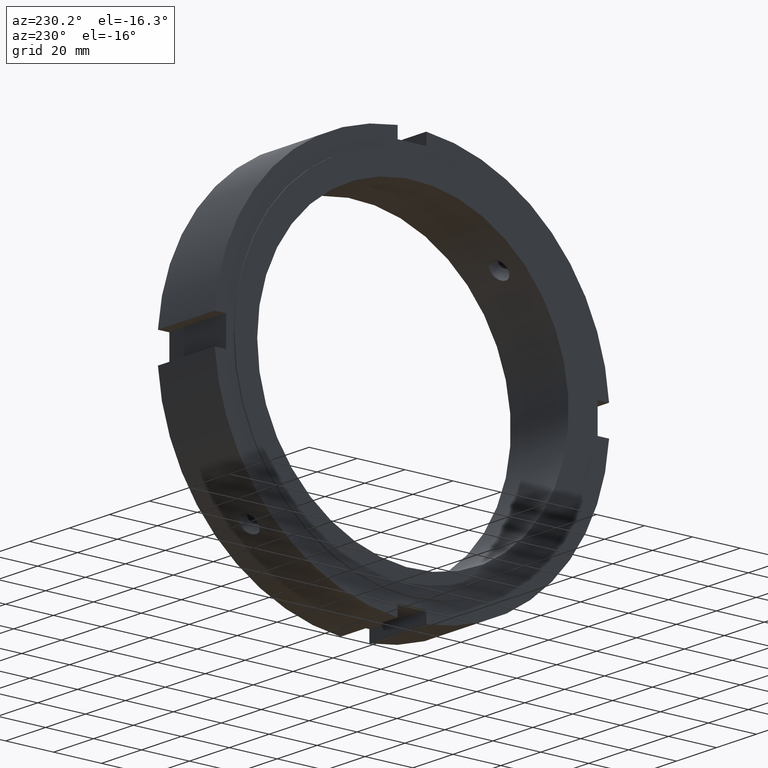
[diagram: clean part render]
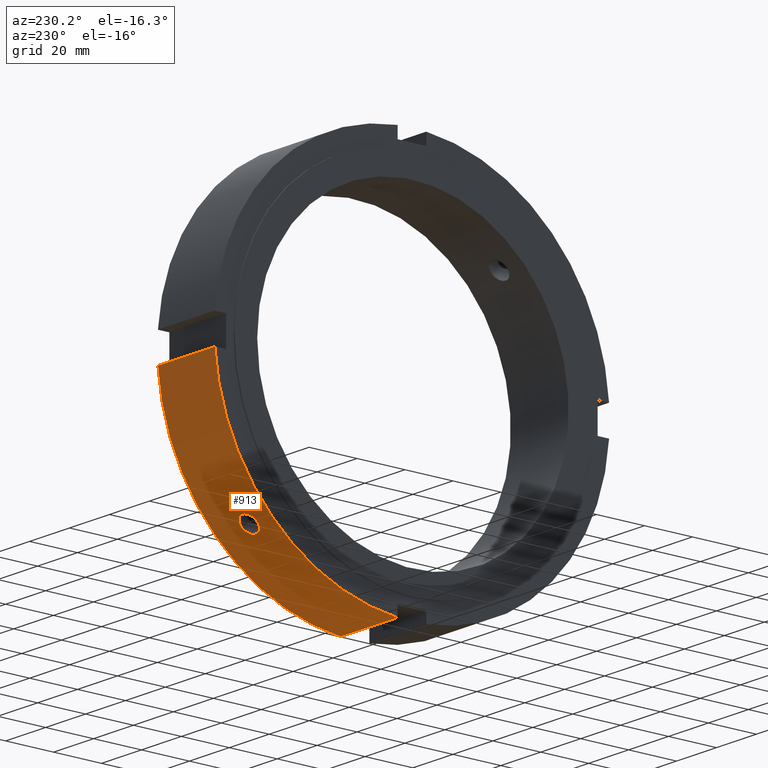
[diagram: same view with one face highlighted and labeled with its STEP entity id]
A machine part, auxiliary view. The second image highlights one B-rep face of the part: STEP entity #913.
In plain terms, the highlighted cylindrical surface (partial cylindrical patch) has radius 82.5 mm, axis along (1, 0, 0).
Its self-contained STEP definition (entity closure, byte-faithful):
#423=CARTESIAN_POINT('',(11.999999999999989,55.47633485278854,-61.062478424162244));
#424=VERTEX_POINT('',#423);
#425=CARTESIAN_POINT('',(11.999999999999986,55.47633485278854,-61.062478424162244));
#426=CARTESIAN_POINT('',(12.496052199177415,55.47633485278854,-61.062478424162244));
#427=CARTESIAN_POINT('',(13.025116846415434,55.54993872322293,-60.995860655348338));
#428=CARTESIAN_POINT('',(13.998292781156,55.84762021212854,-60.723422382487911));
#429=CARTESIAN_POINT('',(14.44241049374652,56.071513228305975,-60.517423183167281));
#430=CARTESIAN_POINT('',(15.143733015356691,56.584222005358249,-60.038312138560777));
#431=CARTESIAN_POINT('',(15.447712762344512,56.907203104077233,-59.733215904459122));
#432=CARTESIAN_POINT('',(15.850848353154539,57.607953842950067,-59.057687911437917));
#433=CARTESIAN_POINT('',(15.949999999999985,57.985547636317648,-58.687071259462684));
#434=CARTESIAN_POINT('',(15.949999999999992,58.68707125946267,-57.985547636317662));
#435=CARTESIAN_POINT('',(15.850848353154547,59.057687911437917,-57.607953842950081));
#436=CARTESIAN_POINT('',(15.447712762344532,59.733215904459129,-56.90720310407724));
#437=CARTESIAN_POINT('',(15.143733015356693,60.038312138560777,-56.584222005358257));
#438=CARTESIAN_POINT('',(14.442410493746522,60.517423183167281,-56.071513228305975));
#439=CARTESIAN_POINT('',(13.998292781156012,60.723422382487939,-55.847620212128525));
#440=CARTESIAN_POINT('',(13.025116846415443,60.995860655348366,-55.549938723222915));
#441=CARTESIAN_POINT('',(12.496052199177416,61.062478424162272,-55.476334852788519));
#442=CARTESIAN_POINT('',(11.50394780082256,61.062478424162272,-55.476334852788526));
#443=CARTESIAN_POINT('',(10.974883153584532,60.995860655348366,-55.549938723222915));
#444=CARTESIAN_POINT('',(10.001707218843965,60.723422382487939,-55.847620212128525));
#445=CARTESIAN_POINT('',(9.557589506253455,60.517423183167281,-56.071513228305975));
#446=CARTESIAN_POINT('',(8.856266984643286,60.038312138560777,-56.584222005358257));
#447=CARTESIAN_POINT('',(8.552287237655445,59.733215904459129,-56.90720310407724));
#448=CARTESIAN_POINT('',(8.149151646845427,59.057687911437917,-57.607953842950081));
#449=CARTESIAN_POINT('',(8.049999999999985,58.68707125946267,-57.985547636317662));
#450=CARTESIAN_POINT('',(8.049999999999992,57.985547636317648,-58.687071259462684));
#451=CARTESIAN_POINT('',(8.149151646845438,57.607953842950053,-59.057687911437924));
#452=CARTESIAN_POINT('',(8.552287237655463,56.907203104077226,-59.733215904459129));
#453=CARTESIAN_POINT('',(8.856266984643286,56.584222005358249,-60.038312138560777));
#454=CARTESIAN_POINT('',(9.557589506253457,56.071513228305975,-60.517423183167281));
#455=CARTESIAN_POINT('',(10.001707218843979,55.84762021212854,-60.723422382487911));
#456=CARTESIAN_POINT('',(10.974883153584543,55.54993872322293,-60.995860655348338));
#457=CARTESIAN_POINT('',(11.503947800822555,55.47633485278854,-61.062478424162244));
#458=CARTESIAN_POINT('',(11.999999999999984,55.47633485278854,-61.062478424162244));
#459=B_SPLINE_CURVE_WITH_KNOTS('',3,(#425,#426,#427,#428,#429,#430,#431,#432,#433,#434,#435,#436,#437,#438,#439,#440,#441,#442,#443,#444,#445,#446,#447,#448,#449,#450,#451,#452,#453,#454,#455,#456,#457,#458),.UNSPECIFIED.,.T.,.U.,(4,2,2,2,2,2,2,2,2,2,2,2,2,2,2,2,4),(0.0,0.148815659753228,0.297631319506456,0.446446952832976,0.595262586159496,0.744078219486017,0.892893852812537,1.041709512565766,1.190525172318995,1.339340832072223,1.488156491825452,1.636972125151972,1.785787758478493,1.934603391805013,2.083419025131533,2.232234684884761,2.381050344637989),.UNSPECIFIED.);
#460=EDGE_CURVE('',#424,#424,#459,.T.);
#557=CARTESIAN_POINT('',(0.499999999999976,5.999999999999981,-82.281528911414853));
#558=VERTEX_POINT('',#557);
#567=CARTESIAN_POINT('',(28.999999999999986,5.999999999999981,-82.281528911414853));
#568=VERTEX_POINT('',#567);
#569=CARTESIAN_POINT('',(28.999999999999986,5.999999999999981,-82.281528911414853));
#570=DIRECTION('',(-1.0,0.0,0.0));
#571=VECTOR('',#570,28.500000000000011);
#572=LINE('',#569,#571);
#573=EDGE_CURVE('',#568,#558,#572,.T.);
#878=CARTESIAN_POINT('',(14.74999999999998,0.0,0.0));
#879=DIRECTION('',(1.0,0.0,0.0));
#880=DIRECTION('',(0.0,1.0,0.0));
#881=AXIS2_PLACEMENT_3D('',#878,#879,#880);
#882=CYLINDRICAL_SURFACE('',#881,82.5);
#883=ORIENTED_EDGE('',*,*,#573,.T.);
#884=CARTESIAN_POINT('',(0.499999999999976,82.281528911414853,-5.999999999999996));
#885=VERTEX_POINT('',#884);
#886=CARTESIAN_POINT('',(0.499999999999976,0.0,0.0));
#887=DIRECTION('',(1.0,0.0,0.0));
#888=DIRECTION('',(0.0,1.0,0.0));
#889=AXIS2_PLACEMENT_3D('',#886,#887,#888);
#890=CIRCLE('',#889,82.5);
#891=EDGE_CURVE('',#558,#885,#890,.T.);
#892=ORIENTED_EDGE('',*,*,#891,.T.);
#893=CARTESIAN_POINT('',(28.999999999999986,82.281528911414853,-5.999999999999996));
#894=VERTEX_POINT('',#893);
#895=CARTESIAN_POINT('',(0.499999999999975,82.281528911414853,-5.999999999999996));
#896=DIRECTION('',(1.0,0.0,0.0));
#897=VECTOR('',#896,28.500000000000011);
#898=LINE('',#895,#897);
#899=EDGE_CURVE('',#885,#894,#898,.T.);
#900=ORIENTED_EDGE('',*,*,#899,.T.);
#901=CARTESIAN_POINT('',(28.999999999999986,0.0,0.0));
#902=DIRECTION('',(1.0,0.0,0.0));
#903=DIRECTION('',(0.0,1.0,0.0));
#904=AXIS2_PLACEMENT_3D('',#901,#902,#903);
#905=CIRCLE('',#904,82.5);
#906=EDGE_CURVE('',#568,#894,#905,.T.);
#907=ORIENTED_EDGE('',*,*,#906,.F.);
#908=EDGE_LOOP('',(#883,#892,#900,#907));
#909=FACE_OUTER_BOUND('',#908,.T.);
#910=ORIENTED_EDGE('',*,*,#460,.T.);
#911=EDGE_LOOP('',(#910));
#912=FACE_BOUND('',#911,.T.);
#913=ADVANCED_FACE('',(#909,#912),#882,.T.);